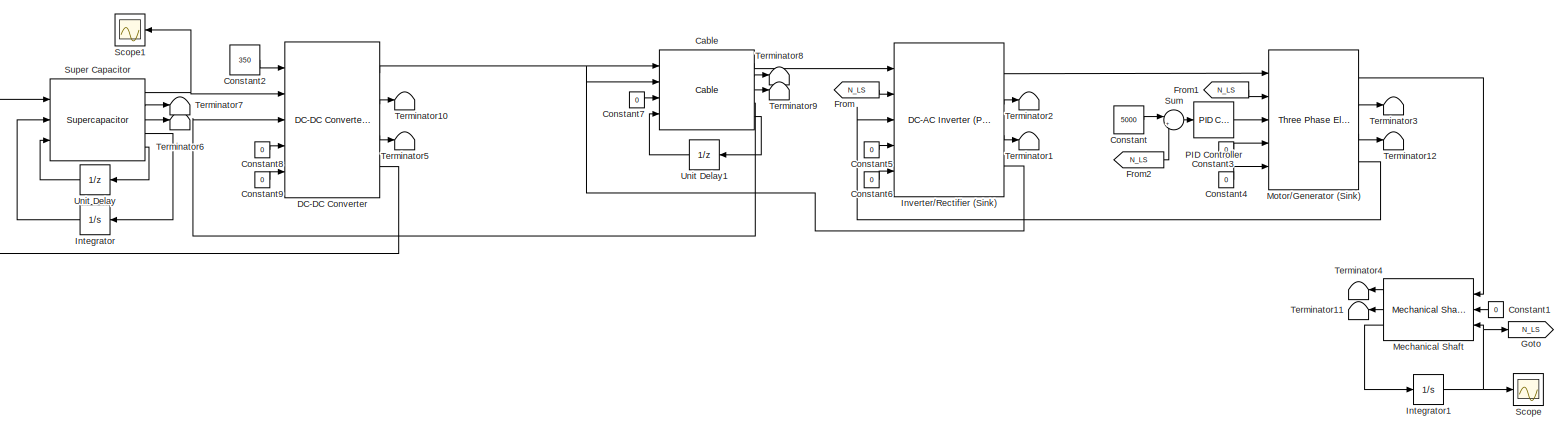
[diagram: root canvas - part 1/1, most of the canvas]
MODEL slx_cf7eebf70169
KIND model
CONFIG AbsTol = auto
CONFIG EnableMultiTasking = off
CONFIG FixedStep = 0.02
CONFIG MaxStep = auto
CONFIG MinStep = auto
CONFIG RelTol = 1e-3
CONFIG SampleTimeConstraint = Unconstrained
CONFIG SolverName = FixedStepAuto
CONFIG StartTime = 0.0
CONFIG StopTime = 10
BLOCK [Reference] Cable  REF=Lib_EMTAT/Components/Power Flow/Cable
  Ports = [4, 5]
  SourceBlock = Lib_EMTAT/Components/Power Flow/Cable
  SourceType = Cable
BLOCK [Constant] Constant
  Value = 5000
BLOCK [Constant] Constant1
  Value = 0
BLOCK [Constant] Constant2
  Value = 350
BLOCK [Constant] Constant3
  Value = 0
BLOCK [Constant] Constant4
  Value = 0
BLOCK [Constant] Constant5
  Value = 0
BLOCK [Constant] Constant6
  Value = 0
BLOCK [Constant] Constant7
  Value = 0
BLOCK [Constant] Constant8
  Value = 0
BLOCK [Constant] Constant9
  Value = 0
BLOCK [Reference] DC-DC Converter  REF=Lib_EMTAT/Components/Power Flow/DC-DC Converter
(Power Loss Map)
(Set Output Voltage)
  Ports = [5, 4]
  SourceBlock = Lib_EMTAT/Components/Power Flow/DC-DC Converter\n(Power Loss Map)\n(Set Output Voltage)
  SourceType = DC-DC Converter (Power Loss Map) (Set Output Voltage)
BLOCK [From] From
  GotoTag = N_LS
BLOCK [From] From1
  GotoTag = N_LS
BLOCK [From] From2
  GotoTag = N_LS
BLOCK [Goto] Goto
  GotoTag = N_LS
BLOCK [Integrator] Integrator
  InitialCondition = 150
  Ports = [1, 1]
BLOCK [Integrator] Integrator1
  InitialCondition = 5000
  Ports = [1, 1]
BLOCK [Reference] Inverter//Rectifier (Sink)  REF=Lib_EMTAT/Components/Power Flow/DC-AC Inverter (Power Loss Map)
  Ports = [5, 4]
  SourceBlock = Lib_EMTAT/Components/Power Flow/DC-AC Inverter (Power Loss Map)
  SourceType = DC-AC Inverter (Power Loss Map)
BLOCK [Reference] Mechanical Shaft  REF=Lib_EMTAT/Components/Power Flow/Mechanical Shaft
  AttributesFormatString = Mechanical Shaft\nVersion: %<LibraryVersion>
  Ports = [3, 3]
  SourceBlock = Lib_EMTAT/Components/Power Flow/Mechanical Shaft
  SourceType = Mechanical Shaft
BLOCK [Reference] Motor//Generator (Sink)  REF=Lib_EMTAT/Components/Power Flow/Three Phase Electric Machine
(Sink)
  Ports = [5, 4]
  SourceBlock = Lib_EMTAT/Components/Power Flow/Three Phase Electric Machine\n(Sink)
  SourceType = Three Phase Electric Machine (Sink)
BLOCK [Reference] PID Controller  REF=slpidlib/PID Controller
  Ports = [1, 1]
  SourceBlock = slpidlib/PID Controller
  SourceType = PID 1dof
BLOCK [Scope] Scope
  Floating = off
  NumInputPorts = 1
  Ports = [1]
  ScopeSpecificationString = Simulink.scopes.TimeScopeBlockCfg('CurrentConfiguration', extmgr.ConfigurationSet(extmgr.Configuration('Core','General UI',true),extmgr.Configuration('Core','Source UI',true),extmgr.Configuration('Sources','WiredSimulink',true,'DataLoggingVariableName','ScopeData1'),extmgr.Configuration('Visuals','Time Domain',true,'SerializedDisplays',{struct('MinYLimReal','4951.48101','MaxYLimReal','5005.391','Y...<+1438ch>
BLOCK [Scope] Scope1
  Floating = off
  NumInputPorts = 1
  Ports = [1]
  ScopeSpecificationString = Simulink.scopes.TimeScopeBlockCfg('CurrentConfiguration', extmgr.ConfigurationSet(extmgr.Configuration('Core','General UI',true),extmgr.Configuration('Core','Source UI',true),extmgr.Configuration('Sources','WiredSimulink',true,'DataLoggingVariableName','ScopeData1'),extmgr.Configuration('Visuals','Time Domain',true,'SerializedDisplays',{struct('MinYLimReal','149.58228','MaxYLimReal','150.04641','Y...<+1419ch>
BLOCK [Sum] Sum
  Inputs = |+-
  Ports = [2, 1]
BLOCK [Reference] Super Capacitor  REF=Lib_EMTAT/Components/Power Flow/Supercapacitor
  Ports = [3, 5]
  SourceBlock = Lib_EMTAT/Components/Power Flow/Supercapacitor
  SourceType = Supercapacitor
BLOCK [Terminator] Terminator1
BLOCK [Terminator] Terminator10
BLOCK [Terminator] Terminator11
BLOCK [Terminator] Terminator12
BLOCK [Terminator] Terminator2
BLOCK [Terminator] Terminator3
BLOCK [Terminator] Terminator4
BLOCK [Terminator] Terminator5
BLOCK [Terminator] Terminator6
BLOCK [Terminator] Terminator7
BLOCK [Terminator] Terminator8
BLOCK [Terminator] Terminator9
BLOCK [UnitDelay] Unit Delay
  HasFrameUpgradeWarning = on
  SampleTime = -1
BLOCK [UnitDelay] Unit Delay1
  HasFrameUpgradeWarning = on
  SampleTime = -1
LINE Cable:1 -> Inverter//Rectifier (Sink):1
LINE Cable:2 -> Terminator8:1
LINE Cable:3 -> Terminator9:1
LINE Cable:4 -> DC-DC Converter:3
LINE Cable:5 -> Unit Delay1:1
LINE Constant1:1 -> Mechanical Shaft:2
LINE Constant2:1 -> DC-DC Converter:1
LINE Constant3:1 -> Motor//Generator (Sink):4
LINE Constant4:1 -> Motor//Generator (Sink):5
LINE Constant5:1 -> Inverter//Rectifier (Sink):4
LINE Constant6:1 -> Inverter//Rectifier (Sink):5
LINE Constant7:1 -> Cable:3
LINE Constant8:1 -> DC-DC Converter:4
LINE Constant9:1 -> DC-DC Converter:5
LINE Constant:1 -> Sum:1
LINE DC-DC Converter:1 -> Cable:1
LINE DC-DC Converter:2 -> Terminator10:1
LINE DC-DC Converter:3 -> Terminator5:1
LINE DC-DC Converter:4 -> Super Capacitor:1
LINE From1:1 -> Motor//Generator (Sink):2
LINE From2:1 -> Sum:2
LINE From:1 -> Inverter//Rectifier (Sink):2
NET Integrator1:1 -> Goto:1, Mechanical Shaft:3, Scope:1
LINE Integrator:1 -> Super Capacitor:2
LINE Inverter//Rectifier (Sink):1 -> Motor//Generator (Sink):1
LINE Inverter//Rectifier (Sink):2 -> Terminator2:1
LINE Inverter//Rectifier (Sink):3 -> Terminator1:1
LINE Inverter//Rectifier (Sink):4 -> Cable:2
LINE Mechanical Shaft:1 -> Terminator4:1
LINE Mechanical Shaft:2 -> Terminator11:1
LINE Mechanical Shaft:3 -> Integrator1:1
LINE Motor//Generator (Sink):1 -> Mechanical Shaft:1
LINE Motor//Generator (Sink):2 -> Terminator3:1
LINE Motor//Generator (Sink):3 -> Terminator12:1
LINE Motor//Generator (Sink):4 -> Inverter//Rectifier (Sink):3
LINE PID Controller:1 -> Motor//Generator (Sink):3
LINE Sum:1 -> PID Controller:1
NET Super Capacitor:1 -> DC-DC Converter:2, Scope1:1
LINE Super Capacitor:2 -> Terminator7:1
LINE Super Capacitor:3 -> Terminator6:1
LINE Super Capacitor:4 -> Integrator:1
LINE Super Capacitor:5 -> Unit Delay:1
LINE Unit Delay1:1 -> Cable:4
LINE Unit Delay:1 -> Super Capacitor:3
note: NET lines group one-source signal fan-out (src -> all destinations, sorted); 1:1 wires keep LINE
